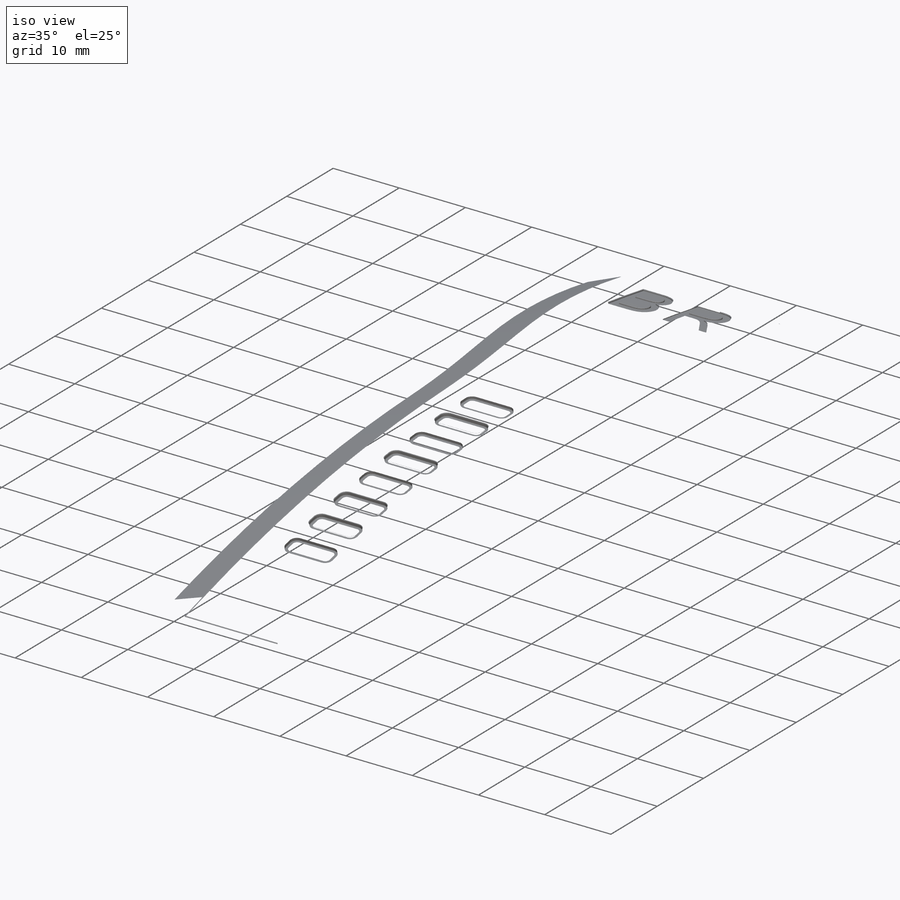
[diagram: iso view]
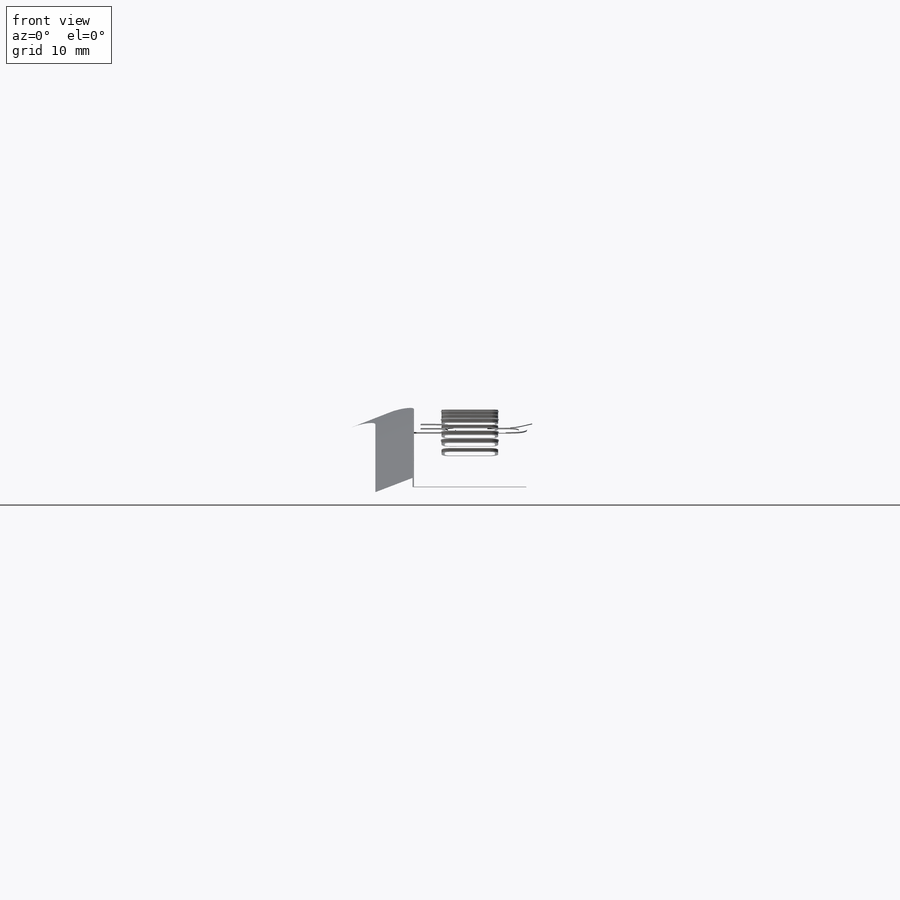
[diagram: front view]
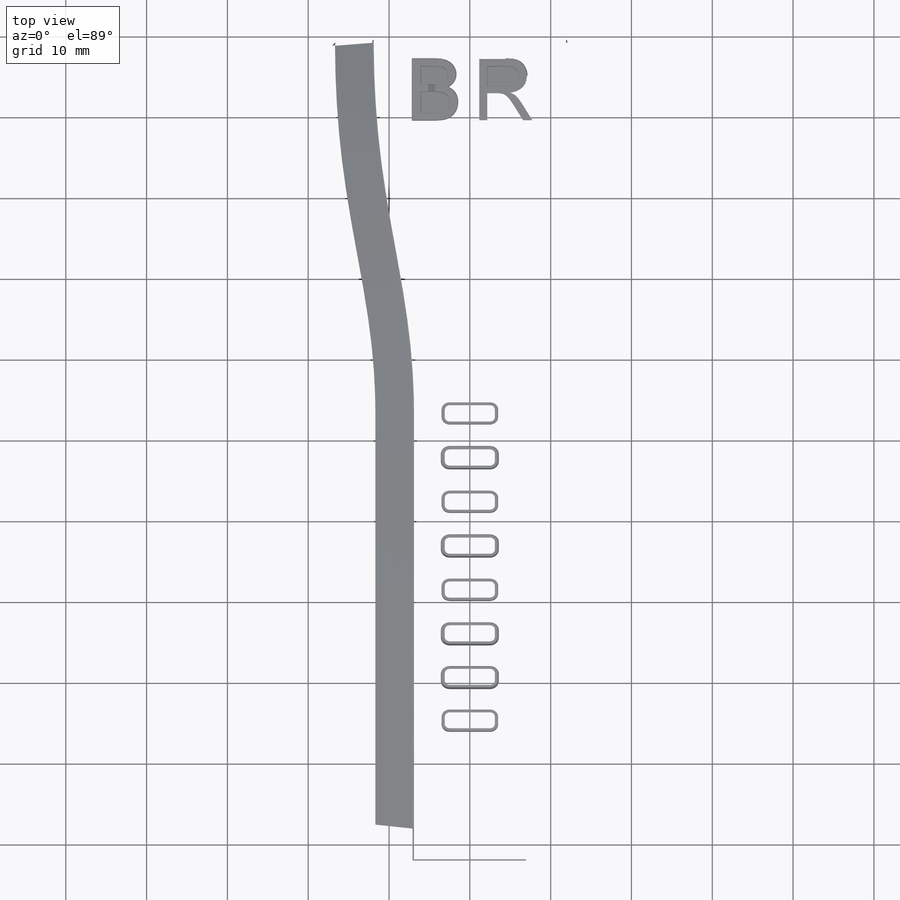
[diagram: top view]
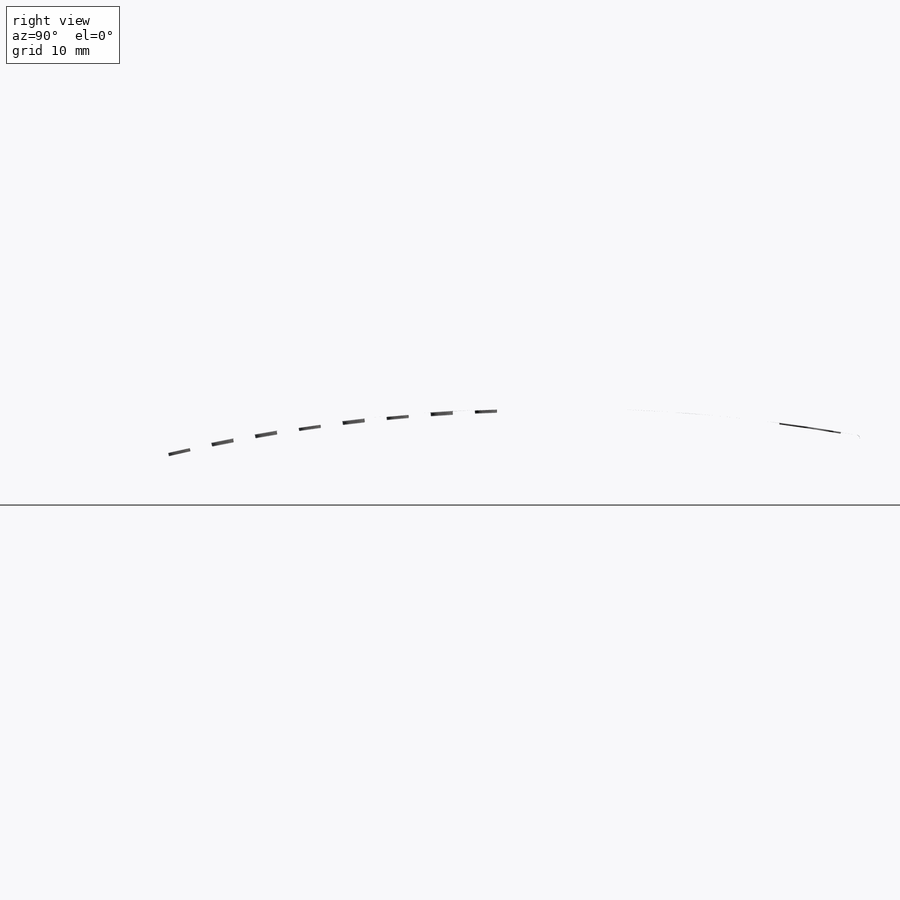
[diagram: right view]
SOLIDWORKS PART (.sldprt)
format: sldprt  version: not decoded by parser v0  size: 5,291,008 bytes
history: native  units: mm
features: sketch x8, cut_extrude x7, fillet x4, material x1, extrude x1, mirror x1, chamfer x1, pattern_linear x1 (+11 scaffold rows collapsed)
feature tree (35):
  scaffold x11  (default folders/planes/origin — collapsed)
  material  "Material <not specified>"
  sketch  "Sketch1"  dims[D1=4.0mm D2=120.0mm]
  extrude  "Boss-Extrude1"  Depth=34mm
  sketch  "Sketch2"  dims[D1=5.0mm D2=23.0mm]
  cut_extrude  "Cut-Extrude2"  Depth=34mm
  sketch  "Sketch3"  dims[D1=24.0mm]
  cut_extrude  "Cut-Extrude3"  [1 undecoded]
  mirror  "Mirror1"
  fillet  "Fillet1"  Radius=5mm
  chamfer  "Chamfer1"  Distance=5mm
  sketch  "Sketch4"  dims[D3=1.0mm D1=3.0mm D2=7.0mm D4=24.0mm]
  cut_extrude  "Cut-Extrude4"  Depth=0.5mm
  sketch  "Sketch5"  dims[D1=0.5mm]
  cut_extrude  "Cut-Extrude5"  Depth=34mm
  pattern_linear  "LPattern1"  Count1=8 Count2=1 Spacing1=6mm Spacing2=10mm
  sketch  "Sketch6"
  cut_extrude  "Cut-Extrude6"  Depth=0.2mm
  sketch  "Sketch7"  dims[c1.D2=2.0mm c1.D3=2.0mm c1.D4=2.0mm c1.D5=2.0mm c2.D4=2.0mm c2.D1=4.0mm]
  cut_extrude  "Cut-Extrude7"  Depth=0.2mm
  fillet  "Fillet4"  Radius=0.5mm
  fillet  "Fillet5"  Radius=0.5mm
  fillet  "Fillet6"  Radius=0.1mm
  sketch  "Sketch9"
  cut_extrude  "Cut-Extrude8"  [1 undecoded]
decode coverage: 18 of 23 modeling features carry decoded parameters
note: 2 parameter values undecoded
note: suppression state not decoded; provenance and decode notes live in map.json
